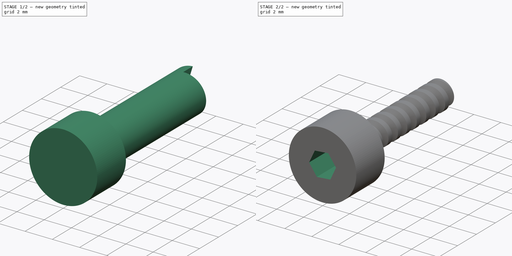
[diagram: build sequence overview — one tinted view per stage of 2, left to right]
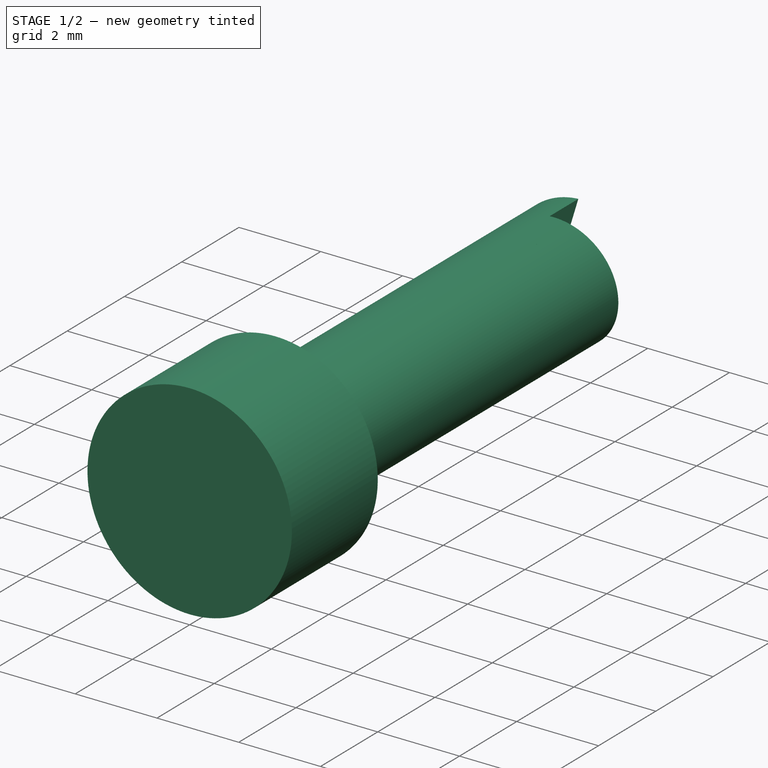
[diagram: stage 1 of 2 — iso view after this stage's code; geometry added in this stage tinted green]
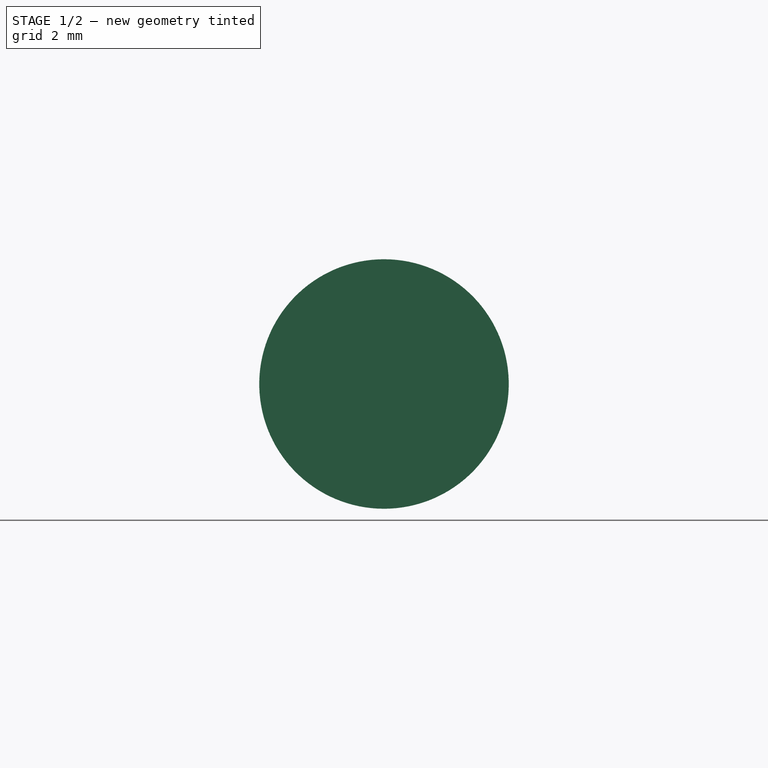
[diagram: stage 1 of 2 — front view after this stage's code; geometry added in this stage tinted green]
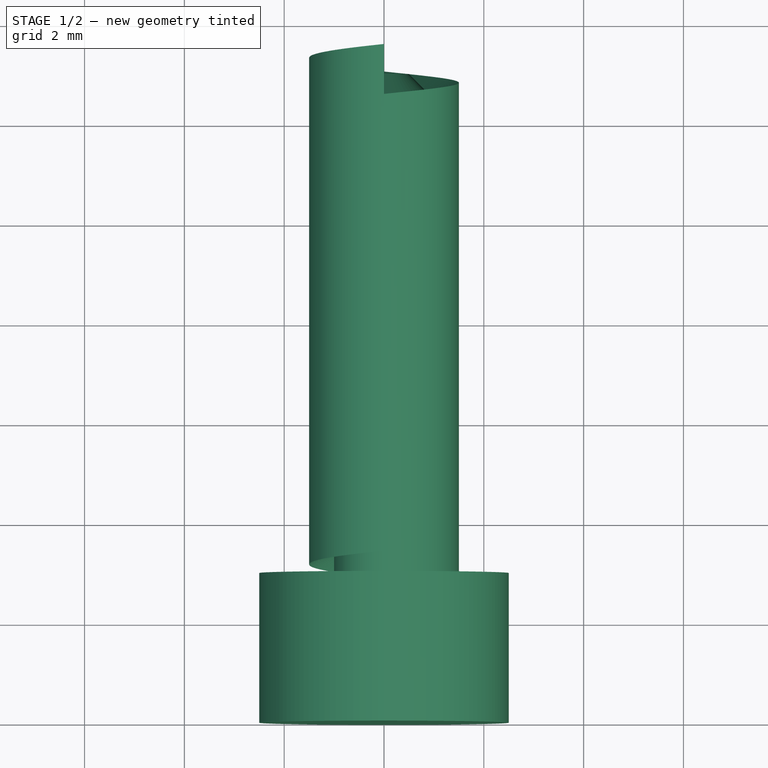
[diagram: stage 1 of 2 — top view after this stage's code; geometry added in this stage tinted green]
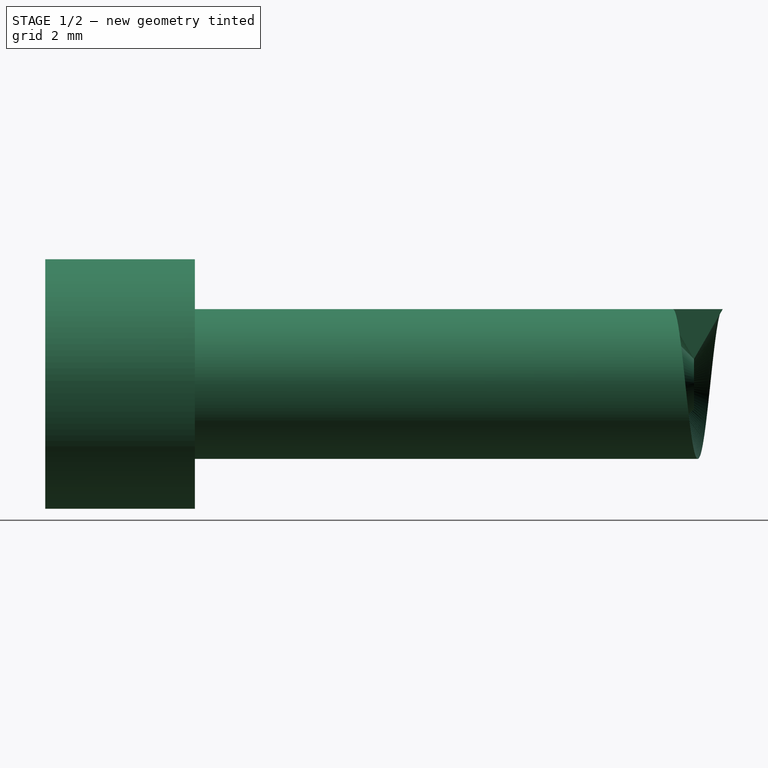
[diagram: stage 1 of 2 — right view after this stage's code; geometry added in this stage tinted green]
FCSTD DOCUMENT  (FreeCAD 0.18R16093 (Git))
Label: 2mm screw threaded
License: All rights reserved
LicenseURL: http://en.wikipedia.org/wiki/All_rights_reserved
objects: Sketcher::SketchObject×3, PartDesign::Revolution×1, PartDesign::Pocket×1, Part::Helix×1, PartDesign::Body×1, Part::Sweep×1, Part::Cut×1
note: 11 computed .brp shape members not serialized (recipe doc carries the construction recipe); baked Part::Feature solids carry a one-line shape summary decoded from their .brp

FEATURE [Sketcher::SketchObject] Sketch018
  MapMode = 5
  Placement = pos=(0,0,0) rot=(0.57735,0.57735,0.57735;2.0944rad)
  Support = -> [YZ_Plane004]
  sketch-geometry (7):
    g0: LineSegment StartX=0 StartY=2.5 StartZ=0 EndX=3 EndY=2.5 EndZ=0
    g1: LineSegment StartX=3 StartY=2.5 StartZ=0 EndX=3 EndY=1 EndZ=0
    g2: LineSegment StartX=3 StartY=1 StartZ=0 EndX=12.5 EndY=1 EndZ=0
    g3: LineSegment StartX=12.5 StartY=1 StartZ=0 EndX=13 EndY=0.5 EndZ=0
    g4: LineSegment StartX=13 StartY=0.5 StartZ=0 EndX=13 EndY=0 EndZ=0
    g5: LineSegment StartX=13 StartY=0 StartZ=0 EndX=0 EndY=0 EndZ=0
    g6: LineSegment StartX=0 StartY=0 StartZ=0 EndX=0 EndY=2.5 EndZ=0
  constraints (20):
    c: Coincident(g0,g1)
    c: Coincident(g1,g2)
    c: Coincident(g2,g3)
    c: Coincident(g3,g4)
    c: Coincident(g4,g5)
    c: Coincident(g5,g6)
    c: Coincident(g6,g0)
    c: Horizontal(g2)
    c: Horizontal(g0)
    c: Horizontal(g5)
    c: Vertical(g6)
    c: Vertical(g1)
    c: Vertical(g4)
    c: DistanceX(g1,g3) = 10
    c: DistanceX(g2,g3) = 0.5
    c: DistanceX(g0,g0) = 3
    c: Coincident(g5,g-1)
    c: DistanceY(g5,g0) = 2.5
    c: DistanceY(g5,g1) = 1
    c: DistanceY(g4,g3) = 0.5
FEATURE [PartDesign::Revolution] Revolution
  Angle = 360
  Axis = (1e-16,1,-1e-16)
  Base = (0,0,0)
  Placement = pos=(0,0,0) rot=(0.57735,0.57735,0.57735;2.0944rad)
  Profile = -> Sketch018
  ReferenceAxis = -> Y_Axis004
FEATURE [Part::Helix] Helix002  label="Helix001"
  Angle = 0
  AttacherType = Attacher::AttachEngine3D
  Height = 10
  LocalCoord = 0
  Pitch = 1
  Placement = pos=(0,3,0) rot=(0.57735,0.57735,0.57735;4.18879rad)
  Radius = 1
  Style = 1
FEATURE [Sketcher::SketchObject] Sketch020
  MapMode = 5
  Placement = pos=(0,0,0) rot=(0.57735,0.57735,0.57735;2.0944rad)
  Support = -> [YZ_Plane004]
  sketch-geometry (3):
    g0: LineSegment StartX=13 StartY=0.5 StartZ=0 EndX=12.4226 EndY=1.5 EndZ=0
    g1: LineSegment StartX=12.4226 StartY=1.5 StartZ=0 EndX=13.5774 EndY=1.5 EndZ=0
    g2: LineSegment StartX=13.5774 StartY=1.5 StartZ=0 EndX=13 EndY=0.5 EndZ=0
  constraints (9):
    c: Coincident(g0,g1)
    c: Coincident(g1,g2)
    c: Coincident(g2,g0)
    c: Horizontal(g1)
    c: Equal(g0,g2)
    c: Angle(g2,g0) = 1.0472
    c: DistanceY(g-1,g0) = 0.5
    c: DistanceY(g-1,g1) = 1.5
    c: DistanceX(g-1,g0) = 13
FEATURE [PartDesign::Body] Body004  label="2mm Screw"
  Group = -> [Sketch018,Revolution,Sketch019,Pocket004,Sketch020]
  Origin = -> Origin004
  Tip = -> Pocket004
FEATURE [Part::Sweep] Sweep002
  Frenet = true
  Sections = -> [Sketch020]
  Solid = true
  Spine = -> Helix002
  Transition = 1
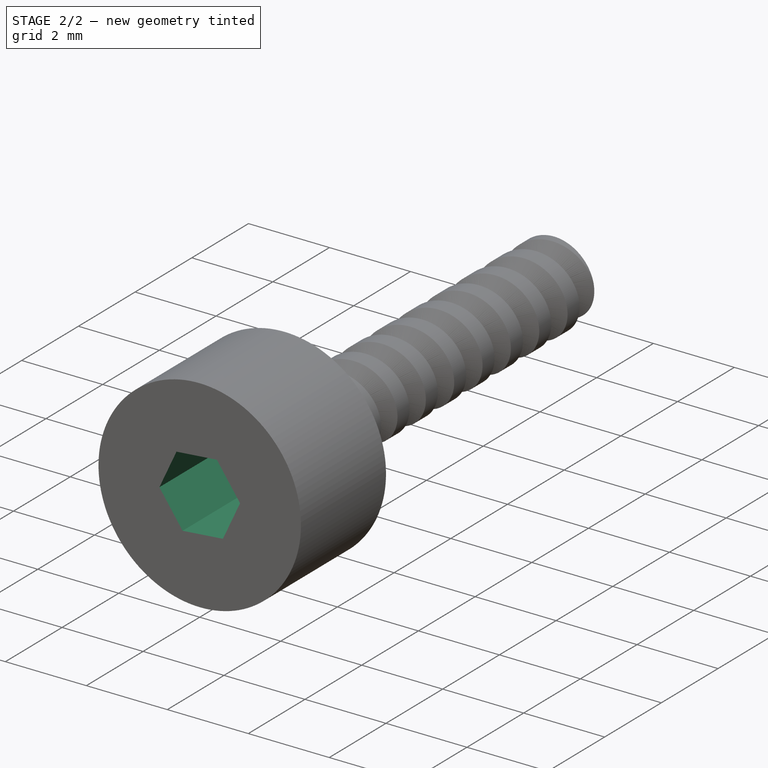
[diagram: stage 2 of 2 — iso view after this stage's code; geometry added in this stage tinted green]
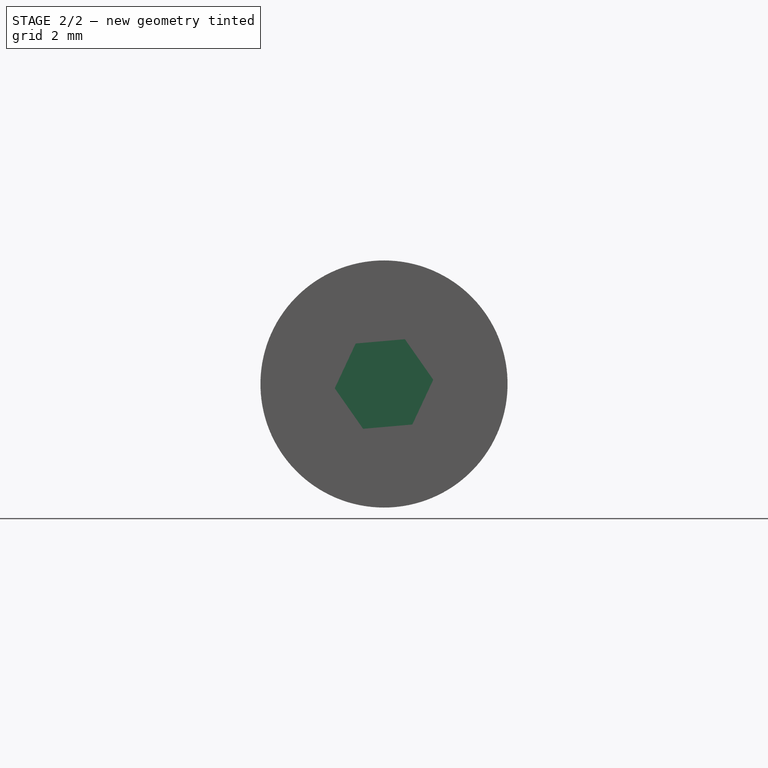
[diagram: stage 2 of 2 — front view after this stage's code; geometry added in this stage tinted green]
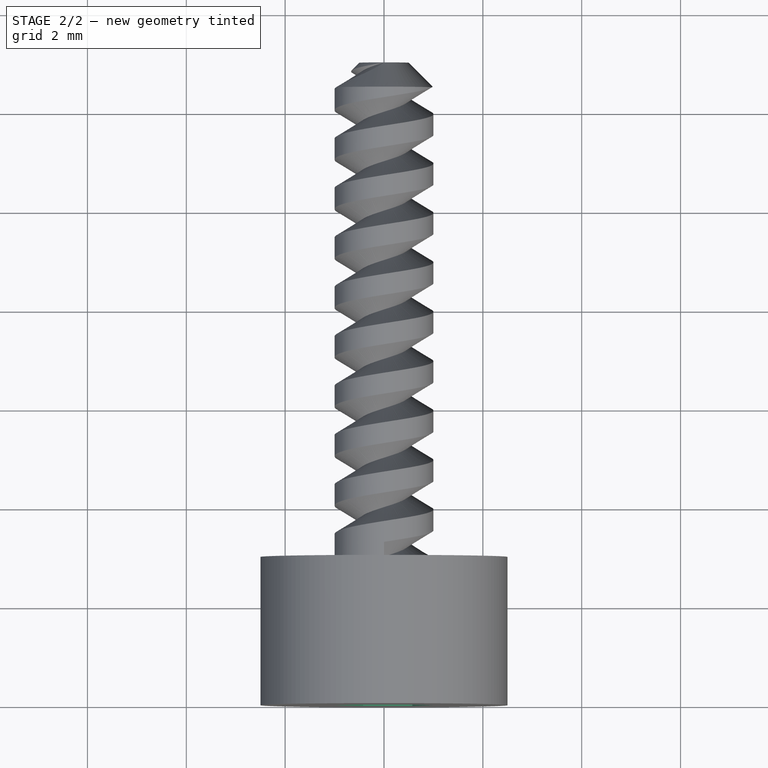
[diagram: stage 2 of 2 — top view after this stage's code; geometry added in this stage tinted green]
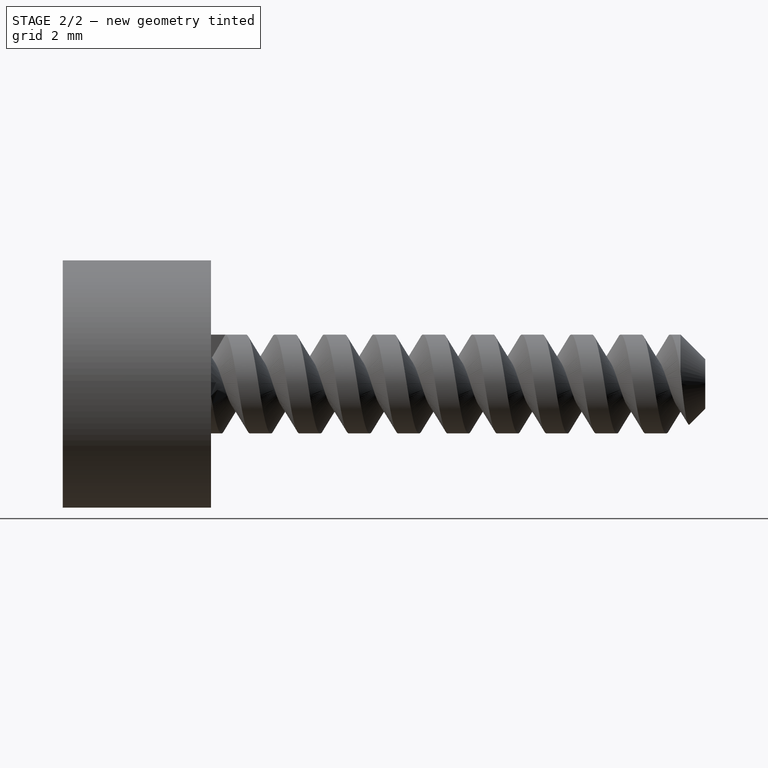
[diagram: stage 2 of 2 — right view after this stage's code; geometry added in this stage tinted green]
FEATURE [Sketcher::SketchObject] Sketch019
  MapMode = 5
  Placement = pos=(0,0,0) rot=(0.57735,0.57735,-0.57735;2.0944rad)
  Support = -> [Revolution]
  sketch-geometry (7):
    g0: LineSegment StartX=0.0870675 StartY=-0.996202 StartZ=0 EndX=0.90627 EndY=-0.422699 EndZ=0
    g1: LineSegment StartX=0.90627 StartY=-0.422699 StartZ=0 EndX=0.819203 EndY=0.573504 EndZ=0
    g2: LineSegment StartX=0.819203 StartY=0.573504 StartZ=0 EndX=-0.0870675 EndY=0.996202 EndZ=0
    g3: LineSegment StartX=-0.0870675 StartY=0.996202 StartZ=0 EndX=-0.90627 EndY=0.422699 EndZ=0
    g4: LineSegment StartX=-0.90627 StartY=0.422699 StartZ=0 EndX=-0.819203 EndY=-0.573504 EndZ=0
    g5: LineSegment StartX=-0.819203 StartY=-0.573504 StartZ=0 EndX=0.0870675 EndY=-0.996202 EndZ=0
    g6: Circle [constr] CenterX=0 CenterY=0 CenterZ=0 NormalX=0 NormalY=0 NormalZ=1 AngleXU=0 Radius=1
  constraints (15):
    c: Coincident(g0,g1)
    c: Coincident(g1,g2)
    c: Coincident(g2,g3)
    c: Coincident(g3,g4)
    c: Coincident(g4,g5)
    c: Coincident(g5,g0)
    c: Equal(g0, g1-g5) x5
    c: PointOnObject(g0,g6)
    c: PointOnObject(g1,g6)
    c: PointOnObject(g2,g6)
    c: PointOnObject(g3,g6)
    c: PointOnObject(g4,g6)
    c: PointOnObject(g5,g6)
    c: Coincident(g6,g-1)
    c: Diameter(g6) = 2
FEATURE [PartDesign::Pocket] Pocket004
  BaseFeature = -> Revolution
  Length = 2
  Length2 = 100
  Placement = pos=(0,0,0) rot=(0.57735,0.57735,0.57735;2.0944rad)
  Profile = -> Sketch019
  Type = 0
FEATURE [Part::Cut] Cut002  label="2mm Screw Threadede"
  Base = -> Body004
  Tool = -> Sweep002
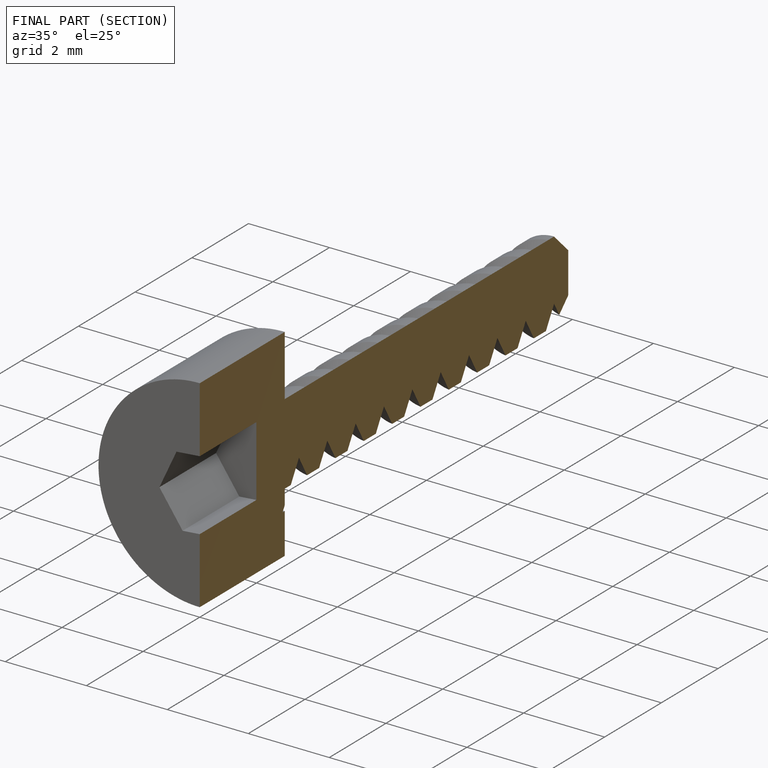
[diagram: finished part — half-section view (interior)]
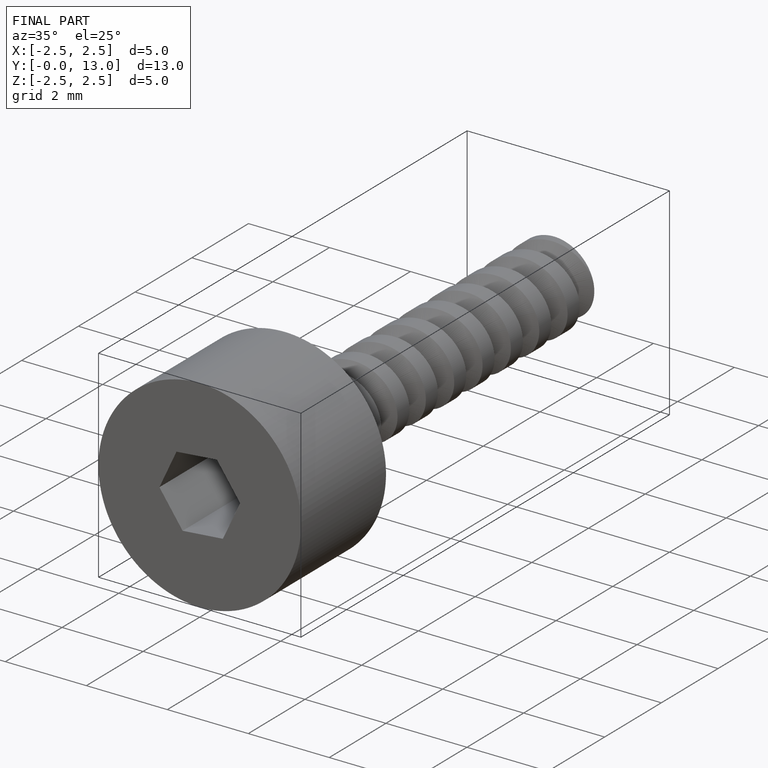
[diagram: finished part — iso view with bounding-box wireframe]
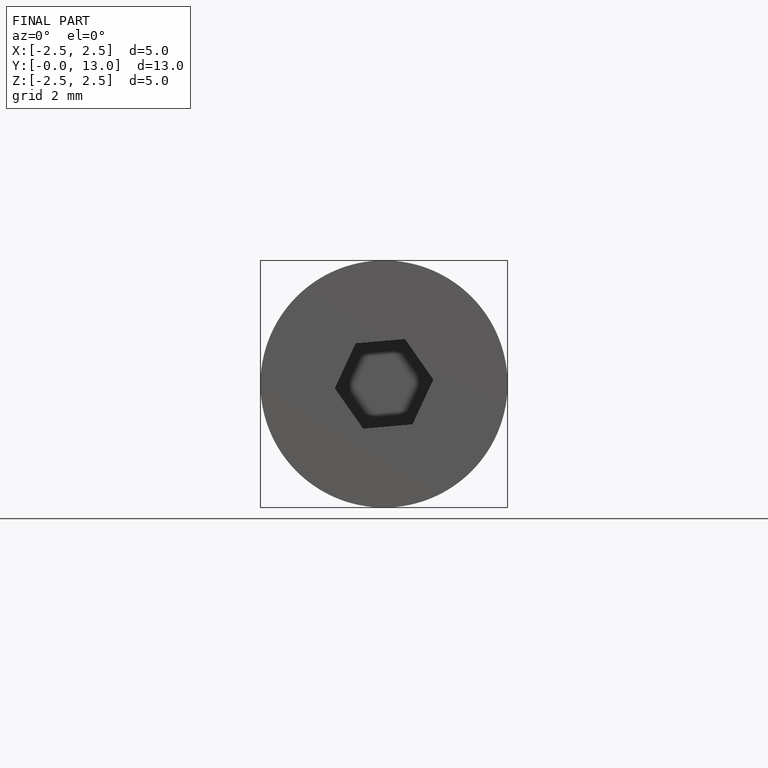
[diagram: finished part — front view with bounding-box wireframe]
